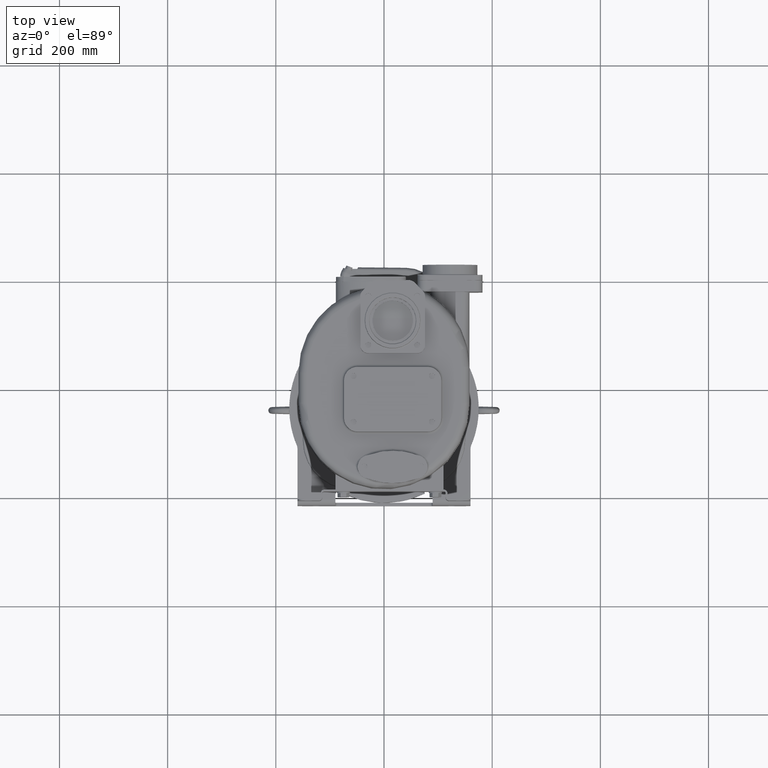
[diagram: clean part render]
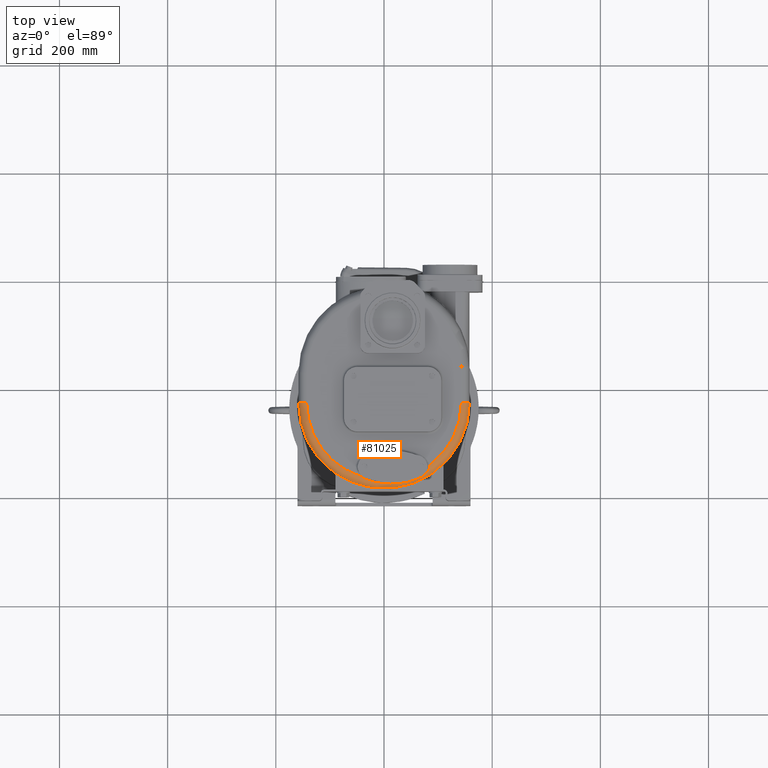
[diagram: same view with one face highlighted and labeled with its STEP entity id]
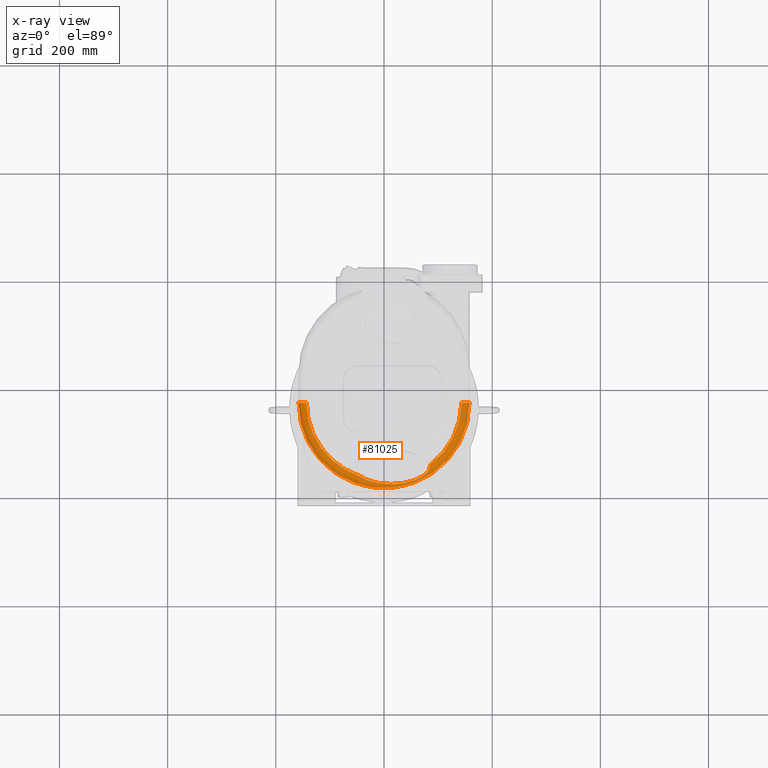
[diagram: x-ray of the same camera — body ghosted, the highlighted face saturated]
A machine part, top view. The second image highlights one B-rep face of the part: STEP entity #81025.
The next image is the same camera in x-ray: the body ghosted, the highlighted face saturated — about 0% of this face is hidden behind the body in this view.
In plain terms, the highlighted toroidal blend (fillet) surface has major radius 143 mm and minor (blend) radius 15 mm.
Its self-contained STEP definition (entity closure, byte-faithful):
#25225=CARTESIAN_POINT('',(-4.409924901421E1,2.096964950101E1,
1.559999776601E2));
#25227=CARTESIAN_POINT('',(0.E0,1.57E2,1.56E2));
#25228=DIRECTION('',(0.E0,0.E0,1.E0));
#25229=DIRECTION('',(-1.E0,0.E0,0.E0));
#25230=AXIS2_PLACEMENT_3D('',#25227,#25228,#25229);
#25250=CARTESIAN_POINT('',(0.E0,1.57E2,1.56E2));
#25251=DIRECTION('',(0.E0,0.E0,1.E0));
#25252=DIRECTION('',(5.916859136736E-1,-8.061685801123E-1,0.E0));
#25253=AXIS2_PLACEMENT_3D('',#25250,#25251,#25252);
#25255=CARTESIAN_POINT('',(8.461108473852E1,4.171789323653E1,1.560000319229E2));
#25485=CARTESIAN_POINT('',(8.460359247683E1,3.855497053226E1,1.557803664729E2));
#25486=CARTESIAN_POINT('',(8.462182413228E1,3.871590638759E1,1.558011952710E2));
#25487=CARTESIAN_POINT('',(8.465262176851E1,3.903495510130E1,1.558399387258E2));
#25488=CARTESIAN_POINT('',(8.468265061589E1,3.950477363960E1,1.558892407209E2));
#25489=CARTESIAN_POINT('',(8.469713961478E1,3.996568165939E1,1.559296332185E2));
#25490=CARTESIAN_POINT('',(8.469668756076E1,4.041758653612E1,1.559610754823E2));
#25491=CARTESIAN_POINT('',(8.468210156164E1,4.086048475829E1,1.559835411101E2));
#25492=CARTESIAN_POINT('',(8.465404929221E1,4.129438218874E1,1.559969944910E2));
#25493=CARTESIAN_POINT('',(8.462677021856E1,4.157773326689E1,1.560000309021E2));
#25494=CARTESIAN_POINT('',(8.461108473852E1,4.171789323653E1,1.560000319229E2));
#25496=CARTESIAN_POINT('',(-1.43E2,1.57E2,1.41E2));
#25497=DIRECTION('',(0.E0,-1.E0,0.E0));
#25498=DIRECTION('',(0.E0,0.E0,1.E0));
#25499=AXIS2_PLACEMENT_3D('',#25496,#25497,#25498);
#25501=CARTESIAN_POINT('',(-4.409924901421E1,2.096964950101E1,
1.559999776601E2));
#25502=CARTESIAN_POINT('',(-4.380445396044E1,2.075047803573E1,
1.559999771572E2));
#25503=CARTESIAN_POINT('',(-4.319411842923E1,2.030872646438E1,
1.559972401822E2));
#25504=CARTESIAN_POINT('',(-4.221633246229E1,1.963902316639E1,
1.559849752002E2));
#25505=CARTESIAN_POINT('',(-4.117089998015E1,1.896177015423E1,
1.559648440645E2));
#25506=CARTESIAN_POINT('',(-4.005413770562E1,1.827771933360E1,
1.559370245731E2));
#25507=CARTESIAN_POINT('',(-3.886148781193E1,1.758771946025E1,
1.559017453147E2));
#25508=CARTESIAN_POINT('',(-3.758909452563E1,1.689301310389E1,
1.558592255724E2));
#25509=CARTESIAN_POINT('',(-3.623575119074E1,1.619660323775E1,
1.558098258832E2));
#25510=CARTESIAN_POINT('',(-3.480033010195E1,1.550123755814E1,
1.557539238938E2));
#25511=CARTESIAN_POINT('',(-3.328017468623E1,1.480903104098E1,
1.556918581019E2));
#25512=CARTESIAN_POINT('',(-3.167309617121E1,1.412231308167E1,
1.556239482997E2));
#25513=CARTESIAN_POINT('',(-2.997809181126E1,1.344405849052E1,
1.555505633330E2));
#25514=CARTESIAN_POINT('',(-2.819440350353E1,1.277716578232E1,
1.554720185314E2));
#25515=CARTESIAN_POINT('',(-2.632142455020E1,1.212465250163E1,
1.553886058052E2));
#25516=CARTESIAN_POINT('',(-2.435940976147E1,1.148973844517E1,
1.553005824648E2));
#25517=CARTESIAN_POINT('',(-2.230903754197E1,1.087565317606E1,
1.552081387927E2));
#25518=CARTESIAN_POINT('',(-2.017153667844E1,1.028578046953E1,
1.551114392340E2));
#25519=CARTESIAN_POINT('',(-1.794882705707E1,9.723409307262E0,
1.550105379417E2));
#25520=CARTESIAN_POINT('',(-1.564342602751E1,9.191994822903E0,
1.549054868307E2));
#25521=CARTESIAN_POINT('',(-1.325879392765E1,8.694827721086E0,
1.547962176920E2));
#25522=CARTESIAN_POINT('',(-1.079886079785E1,8.235246560102E0,
1.546826665123E2));
#25523=CARTESIAN_POINT('',(-8.268620147148E0,7.816358538264E0,
1.545646648222E2));
#25524=CARTESIAN_POINT('',(-5.673372025299E0,7.441191811588E0,
1.544420621994E2));
#25525=CARTESIAN_POINT('',(-3.019463376094E0,7.112449557151E0,
1.543146268013E2));
#25526=CARTESIAN_POINT('',(-3.134541818842E-1,6.832687165777E0,
1.541821901321E2));
#25527=CARTESIAN_POINT('',(2.437299078092E0,6.603992925259E0,1.540445100027E2));
#25528=CARTESIAN_POINT('',(5.225242169296E0,6.428312473004E0,1.539014932683E2));
#25529=CARTESIAN_POINT('',(8.042415262091E0,6.306979142083E0,1.537529651407E2));
#25530=CARTESIAN_POINT('',(1.088063084612E1,6.241211166889E0,1.535989985980E2));
#25531=CARTESIAN_POINT('',(1.373162739820E1,6.231581314603E0,1.534396236737E2));
#25532=CARTESIAN_POINT('',(1.658697368297E1,6.278428651094E0,1.532751146912E2));
#25533=CARTESIAN_POINT('',(1.943823663445E1,6.381694303544E0,1.531059280090E2));
#25534=CARTESIAN_POINT('',(2.227735308128E1,6.540699328384E0,1.529325127140E2));
#25535=CARTESIAN_POINT('',(2.509643220815E1,6.754818020596E0,1.527558285793E2));
#25536=CARTESIAN_POINT('',(2.788761121279E1,7.022753337043E0,1.525768559421E2));
#25537=CARTESIAN_POINT('',(3.064262511163E1,7.342702390555E0,1.523967783976E2));
#25538=CARTESIAN_POINT('',(3.335335709348E1,7.712900242625E0,1.522174096010E2));
#25539=CARTESIAN_POINT('',(3.601154514047E1,8.130597611679E0,1.520403936563E2));
#25540=CARTESIAN_POINT('',(3.860824409786E1,8.592766657225E0,1.518679265989E2));
#25541=CARTESIAN_POINT('',(4.113473791369E1,9.095916908104E0,1.517024570493E2));
#25542=CARTESIAN_POINT('',(4.358275414241E1,9.635660840154E0,1.515461280336E2));
#25543=CARTESIAN_POINT('',(4.594382964457E1,1.020761610344E1,1.514017402133E2));
#25544=CARTESIAN_POINT('',(4.821111130503E1,1.080654459880E1,1.512713005565E2));
#25545=CARTESIAN_POINT('',(5.037977006529E1,1.142773708708E1,1.511569638330E2));
#25546=CARTESIAN_POINT('',(5.244516544889E1,1.206589710613E1,1.510603732388E2));
#25547=CARTESIAN_POINT('',(5.440777112452E1,1.271698324016E1,1.509824945009E2));
#25548=CARTESIAN_POINT('',(5.626730760676E1,1.337694543932E1,1.509242345793E2));
#25549=CARTESIAN_POINT('',(5.802754929428E1,1.404278708591E1,1.508855545395E2));
#25550=CARTESIAN_POINT('',(5.969264676571E1,1.471235360862E1,1.508665397244E2));
#25551=CARTESIAN_POINT('',(6.126773442492E1,1.538384491575E1,1.508666323551E2));
#25552=CARTESIAN_POINT('',(6.275869243632E1,1.605637544688E1,1.508852921175E2));
#25553=CARTESIAN_POINT('',(6.417122427114E1,1.672936502541E1,1.509217955841E2));
#25554=CARTESIAN_POINT('',(6.551073786318E1,1.740245542159E1,1.509752709930E2));
#25555=CARTESIAN_POINT('',(6.678255117115E1,1.807577219645E1,1.510449212924E2));
#25556=CARTESIAN_POINT('',(6.799118169908E1,1.874931074850E1,1.511297949664E2));
#25557=CARTESIAN_POINT('',(6.914063056416E1,1.942319020036E1,1.512289816761E2));
#25558=CARTESIAN_POINT('',(7.023466617809E1,2.009768088327E1,1.513415399175E2));
#25559=CARTESIAN_POINT('',(7.127598207238E1,2.077267594297E1,1.514664560732E2));
#25560=CARTESIAN_POINT('',(7.226740848398E1,2.144837347913E1,1.516027484661E2));
#25561=CARTESIAN_POINT('',(7.321083988737E1,2.212453677118E1,1.517493351596E2));
#25562=CARTESIAN_POINT('',(7.410811671245E1,2.280103541311E1,1.519051469485E2));
#25563=CARTESIAN_POINT('',(7.496067676357E1,2.347753161459E1,1.520690414605E2));
#25564=CARTESIAN_POINT('',(7.576962720298E1,2.415353794698E1,1.522398577156E2));
#25565=CARTESIAN_POINT('',(7.653611564381E1,2.482859676853E1,1.524164136503E2));
#25566=CARTESIAN_POINT('',(7.726093577384E1,2.550199886702E1,1.525974875651E2));
#25567=CARTESIAN_POINT('',(7.794496109287E1,2.617310479631E1,1.527818921835E2));
#25568=CARTESIAN_POINT('',(7.858903514177E1,2.684116997028E1,1.529684083824E2));
#25569=CARTESIAN_POINT('',(7.919388861684E1,2.750537893586E1,1.531558622086E2));
#25570=CARTESIAN_POINT('',(7.976034095098E1,2.816494119564E1,1.533431159972E2));
#25571=CARTESIAN_POINT('',(8.028932301223E1,2.881907514694E1,1.535290592654E2));
#25572=CARTESIAN_POINT('',(8.078171395330E1,2.946698834292E1,1.537126629820E2));
#25573=CARTESIAN_POINT('',(8.123844116932E1,3.010788072649E1,1.538929492525E2));
#25574=CARTESIAN_POINT('',(8.166059386352E1,3.074104947025E1,1.540690132604E2));
#25575=CARTESIAN_POINT('',(8.204927578746E1,3.136586099369E1,1.542400519357E2));
#25576=CARTESIAN_POINT('',(8.240557246088E1,3.198163608379E1,1.544053178482E2));
#25577=CARTESIAN_POINT('',(8.273070566619E1,3.258783168675E1,1.545641575466E2));
#25578=CARTESIAN_POINT('',(8.302595920756E1,3.318411437490E1,1.547160475859E2));
#25579=CARTESIAN_POINT('',(8.329256936760E1,3.377011461549E1,1.548605147666E2));
#25580=CARTESIAN_POINT('',(8.353182529345E1,3.434554401475E1,1.549971558654E2));
#25581=CARTESIAN_POINT('',(8.374494684957E1,3.491015105360E1,1.551256436354E2));
#25582=CARTESIAN_POINT('',(8.393313419003E1,3.546367932930E1,1.552456976777E2));
#25583=CARTESIAN_POINT('',(8.409764681189E1,3.600593925199E1,1.553570922376E2));
#25584=CARTESIAN_POINT('',(8.423971422962E1,3.653710883918E1,1.554597345935E2));
#25585=CARTESIAN_POINT('',(8.436050190269E1,3.705740714757E1,1.555535593507E2));
#25586=CARTESIAN_POINT('',(8.446122035012E1,3.756714517615E1,1.556385225531E2));
#25587=CARTESIAN_POINT('',(8.454285520607E1,3.806667236441E1,1.557146126925E2));
#25588=CARTESIAN_POINT('',(8.458527159826E1,3.839332805670E1,1.557594498451E2));
#25589=CARTESIAN_POINT('',(8.460359247683E1,3.855497053226E1,1.557803664729E2));
#25591=CARTESIAN_POINT('',(1.43E2,1.57E2,1.41E2));
#25592=DIRECTION('',(0.E0,1.E0,0.E0));
#25593=DIRECTION('',(0.E0,0.E0,1.E0));
#25594=AXIS2_PLACEMENT_3D('',#25591,#25592,#25593);
#27407=CARTESIAN_POINT('',(0.E0,1.57E2,1.41E2));
#27408=DIRECTION('',(0.E0,0.E0,1.E0));
#27409=DIRECTION('',(-1.E0,0.E0,0.E0));
#27410=AXIS2_PLACEMENT_3D('',#27407,#27408,#27409);
#43115=CARTESIAN_POINT('',(1.43E2,1.57E2,1.56E2));
#43116=VERTEX_POINT('',#43115);
#43117=CARTESIAN_POINT('',(1.58E2,1.57E2,1.41E2));
#43118=VERTEX_POINT('',#43117);
#43119=CARTESIAN_POINT('',(-1.58E2,1.57E2,1.41E2));
#43120=VERTEX_POINT('',#43119);
#43122=CARTESIAN_POINT('',(-1.43E2,1.57E2,1.56E2));
#43124=VERTEX_POINT('',#43122);
#43182=VERTEX_POINT('',#25225);
#43184=VERTEX_POINT('',#25255);
#43186=VERTEX_POINT('',#25485);
#81007=CARTESIAN_POINT('',(0.E0,1.57E2,1.41E2));
#81008=DIRECTION('',(0.E0,0.E0,-1.E0));
#81009=DIRECTION('',(-9.999725603430E-1,7.408006546467E-3,0.E0));
#81010=AXIS2_PLACEMENT_3D('',#81007,#81008,#81009);
#81011=TOROIDAL_SURFACE('',#81010,1.43E2,1.5E1);
#81012=ORIENTED_EDGE('',*,*,#80997,.T.);
#81013=ORIENTED_EDGE('',*,*,#80706,.T.);
#81015=ORIENTED_EDGE('',*,*,#81014,.T.);
#81017=ORIENTED_EDGE('',*,*,#81016,.F.);
#81019=ORIENTED_EDGE('',*,*,#81018,.F.);
#81020=ORIENTED_EDGE('',*,*,#80692,.T.);
#81022=ORIENTED_EDGE('',*,*,#81021,.T.);
#81023=EDGE_LOOP('',(#81012,#81013,#81015,#81017,#81019,#81020,#81022));
#81024=FACE_OUTER_BOUND('',#81023,.F.);
#81025=ADVANCED_FACE('',(#81024),#81011,.T.);
#25231=CIRCLE('',#25230,1.43E2);
#25254=CIRCLE('',#25253,1.43E2);
#25495=B_SPLINE_CURVE_WITH_KNOTS('',3,(#25485,#25486,#25487,#25488,#25489,
#25490,#25491,#25492,#25493,#25494),.UNSPECIFIED.,.F.,.F.,(4,1,1,1,1,1,1,4),(
0.E0,1.428571428571E-1,2.857142857143E-1,4.285714285714E-1,5.714285714286E-1,
7.142857142857E-1,8.571428571429E-1,1.E0),.UNSPECIFIED.);
#25500=CIRCLE('',#25499,1.5E1);
#25590=B_SPLINE_CURVE_WITH_KNOTS('',3,(#25501,#25502,#25503,#25504,#25505,
#25506,#25507,#25508,#25509,#25510,#25511,#25512,#25513,#25514,#25515,#25516,
#25517,#25518,#25519,#25520,#25521,#25522,#25523,#25524,#25525,#25526,#25527,
#25528,#25529,#25530,#25531,#25532,#25533,#25534,#25535,#25536,#25537,#25538,
#25539,#25540,#25541,#25542,#25543,#25544,#25545,#25546,#25547,#25548,#25549,
#25550,#25551,#25552,#25553,#25554,#25555,#25556,#25557,#25558,#25559,#25560,
#25561,#25562,#25563,#25564,#25565,#25566,#25567,#25568,#25569,#25570,#25571,
#25572,#25573,#25574,#25575,#25576,#25577,#25578,#25579,#25580,#25581,#25582,
#25583,#25584,#25585,#25586,#25587,#25588,#25589),.UNSPECIFIED.,.F.,.F.,(4,1,1,
1,1,1,1,1,1,1,1,1,1,1,1,1,1,1,1,1,1,1,1,1,1,1,1,1,1,1,1,1,1,1,1,1,1,1,1,1,1,1,1,
1,1,1,1,1,1,1,1,1,1,1,1,1,1,1,1,1,1,1,1,1,1,1,1,1,1,1,1,1,1,1,1,1,1,1,1,1,1,1,1,
1,1,1,4),(0.E0,1.162790697674E-2,2.325581395349E-2,3.488372093023E-2,
4.651162790698E-2,5.813953488372E-2,6.976744186047E-2,8.139534883721E-2,
9.302325581395E-2,1.046511627907E-1,1.162790697674E-1,1.279069767442E-1,
1.395348837209E-1,1.511627906977E-1,1.627906976744E-1,1.744186046512E-1,
1.860465116279E-1,1.976744186047E-1,2.093023255814E-1,2.209302325581E-1,
2.325581395349E-1,2.441860465116E-1,2.558139534884E-1,2.674418604651E-1,
2.790697674419E-1,2.906976744186E-1,3.023255813953E-1,3.139534883721E-1,
3.255813953488E-1,3.372093023256E-1,3.488372093023E-1,3.604651162791E-1,
3.720930232558E-1,3.837209302326E-1,3.953488372093E-1,4.069767441860E-1,
4.186046511628E-1,4.302325581395E-1,4.418604651163E-1,4.534883720930E-1,
4.651162790698E-1,4.767441860465E-1,4.883720930233E-1,5.E-1,5.116279069767E-1,
5.232558139535E-1,5.348837209302E-1,5.465116279070E-1,5.581395348837E-1,
5.697674418605E-1,5.813953488372E-1,5.930232558140E-1,6.046511627907E-1,
6.162790697674E-1,6.279069767442E-1,6.395348837209E-1,6.511627906977E-1,
6.627906976744E-1,6.744186046512E-1,6.860465116279E-1,6.976744186047E-1,
7.093023255814E-1,7.209302325581E-1,7.325581395349E-1,7.441860465116E-1,
7.558139534884E-1,7.674418604651E-1,7.790697674419E-1,7.906976744186E-1,
8.023255813953E-1,8.139534883721E-1,8.255813953488E-1,8.372093023256E-1,
8.488372093023E-1,8.604651162791E-1,8.720930232558E-1,8.837209302326E-1,
8.953488372093E-1,9.069767441860E-1,9.186046511628E-1,9.302325581395E-1,
9.418604651163E-1,9.534883720930E-1,9.651162790698E-1,9.767441860465E-1,
9.883720930233E-1,1.E0),.UNSPECIFIED.);
#25595=CIRCLE('',#25594,1.5E1);
#27411=CIRCLE('',#27410,1.58E2);
#80692=EDGE_CURVE('',#43124,#43182,#25231,.T.);
#80706=EDGE_CURVE('',#43184,#43116,#25254,.T.);
#80997=EDGE_CURVE('',#43186,#43184,#25495,.T.);
#81014=EDGE_CURVE('',#43116,#43118,#25595,.T.);
#81016=EDGE_CURVE('',#43120,#43118,#27411,.T.);
#81018=EDGE_CURVE('',#43124,#43120,#25500,.T.);
#81021=EDGE_CURVE('',#43182,#43186,#25590,.T.);